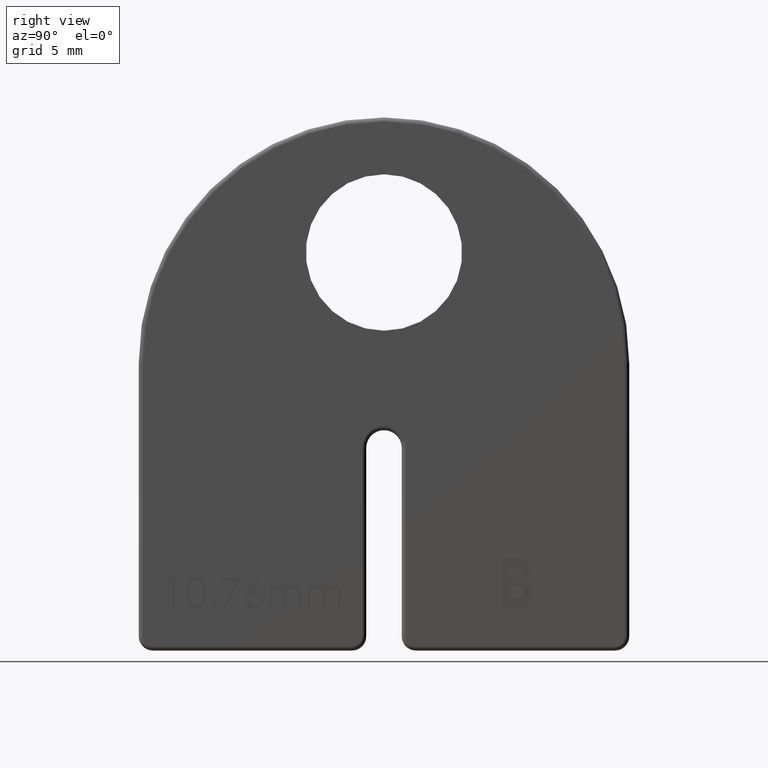
[diagram: clean part render]
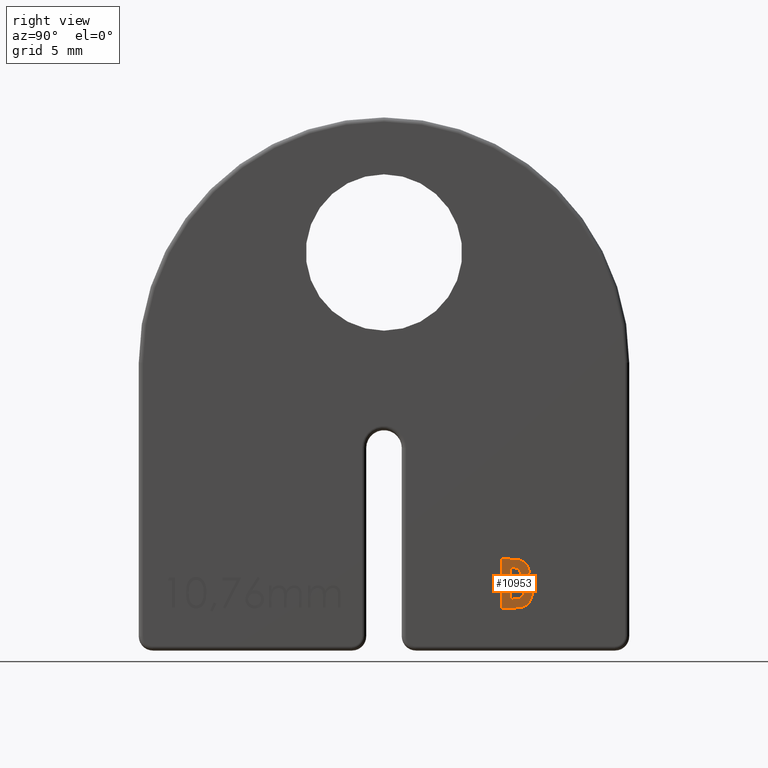
[diagram: same view with one face highlighted and labeled with its STEP entity id]
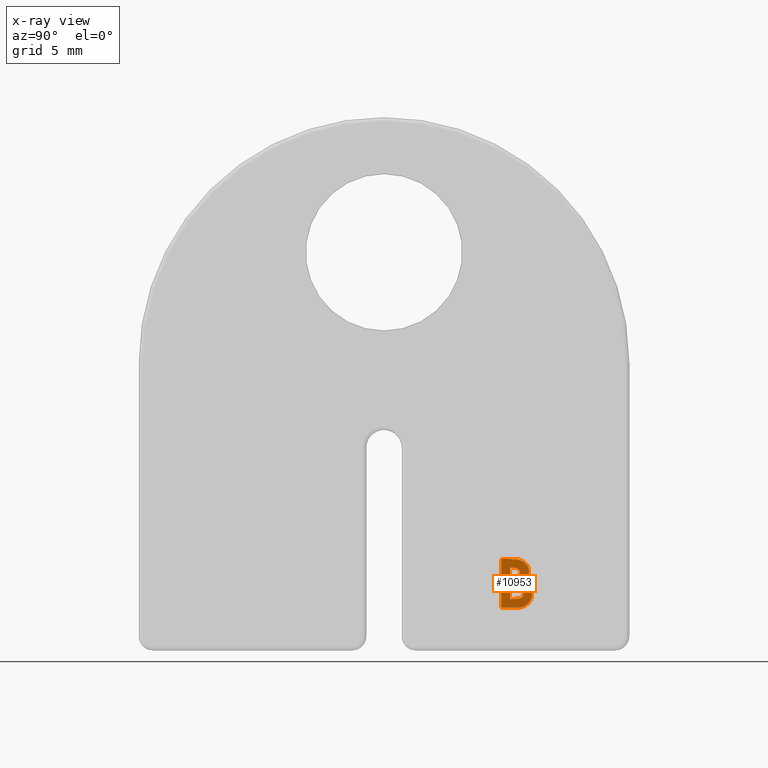
[diagram: x-ray of the same camera — body ghosted, the highlighted face saturated]
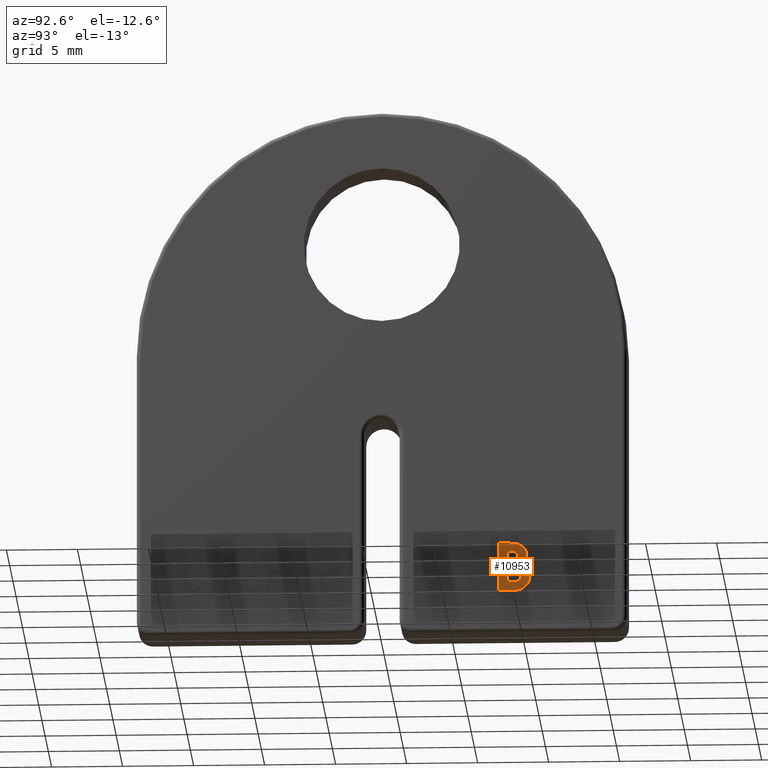
[diagram: same view with one face highlighted and labeled with its STEP entity id]
A machine part, right view. The second image highlights one B-rep face of the part: STEP entity #10953.
The next image is the same camera in x-ray: the body ghosted, the highlighted face saturated — about 0% of this face is hidden behind the body in this view.
A second angle (auxiliary view) of the same face is appended — the face is thin or edge-on in the first view.
In plain terms, the highlighted planar face has unit normal (1, -0, 0).
Its self-contained STEP definition (entity closure, byte-faithful):
#20 = CARTESIAN_POINT ( 'NONE',  ( 3.499999999999999600, 10.41013143520535600, 4.139619077888255600 ) ) ;
#100 = CARTESIAN_POINT ( 'NONE',  ( 3.500000000000001300, 10.36516602735841600, 4.338464676585641800 ) ) ;
#128 = CARTESIAN_POINT ( 'NONE',  ( 3.500000000000000000, 10.41857638888888700, 3.995632595486110700 ) ) ;
#275 = EDGE_CURVE ( 'NONE', #16411, #18564, #7447, .T. ) ;
#282 = FACE_BOUND ( 'NONE', #10686, .T. ) ;
#383 = VERTEX_POINT ( 'NONE', #10902 ) ;
#520 = CARTESIAN_POINT ( 'NONE',  ( 3.500000000000000000, 9.464412258733810600, 5.718203924093611300 ) ) ;
#550 = CARTESIAN_POINT ( 'NONE',  ( 3.499999999999999600, 10.09417881822505500, 5.955117638097018300 ) ) ;
#623 = CARTESIAN_POINT ( 'NONE',  ( 3.500000000000000400, 10.05614775797258400, 6.015293188067772700 ) ) ;
#674 = B_SPLINE_CURVE_WITH_KNOTS ( 'NONE', 3,
 ( #5881, #21975, #16765, #21904, #21751, #520, #2376, #6104, #4156, #13110, #7509, #11243, #19961, #11081, #5958 ),
 .UNSPECIFIED., .F., .F.,
 ( 4, 1, 1, 1, 1, 1, 1, 1, 1, 1, 1, 1, 4 ),
 ( 0.0000000000000000000, 0.1123397055304398700, 0.2172043059062445700, 0.3207987630358897800, 0.4294760880340239800, 0.4869234955140479500, 0.5473863498778736000, 0.6105942085202363800, 0.6783160237002511300, 0.7509883913460968500, 0.8285513832741331400, 0.9114876284239011900, 1.000000000000000000 ),
 .UNSPECIFIED. ) ;
#703 = CARTESIAN_POINT ( 'NONE',  ( 3.500000000000000000, 8.875173611111110400, 4.499305555555555000 ) ) ;
#1187 = CARTESIAN_POINT ( 'NONE',  ( 3.499999999999999600, 9.121025390901062100, 4.498302520519143100 ) ) ;
#1437 = CARTESIAN_POINT ( 'NONE',  ( 3.499999999999998700, 9.550805795732170400, 3.673377552892806100 ) ) ;
#1497 = VERTEX_POINT ( 'NONE', #19052 ) ;
#1513 = LINE ( 'NONE', #18235, #9853 ) ;
#1515 = CARTESIAN_POINT ( 'NONE',  ( 3.500000000000000900, 10.11533522020680000, 5.181741882418963400 ) ) ;
#1653 = VERTEX_POINT ( 'NONE', #19872 ) ;
#1656 = VERTEX_POINT ( 'NONE', #1748 ) ;
#1748 = CARTESIAN_POINT ( 'NONE',  ( 3.500000000000000000, 9.052940538194443200, 3.617361111111110400 ) ) ;
#1796 = CARTESIAN_POINT ( 'NONE',  ( 3.500000000000000000, 8.875173611111110400, 4.499305555555555000 ) ) ;
#1936 = CARTESIAN_POINT ( 'NONE',  ( 3.500000000000000000, 10.19809027777777600, 5.542480468750000000 ) ) ;
#2359 = ORIENTED_EDGE ( 'NONE', *, *, #2426, .F. ) ;
#2376 = CARTESIAN_POINT ( 'NONE',  ( 3.500000000000000900, 9.419991816386129800, 5.748186197470976000 ) ) ;
#2406 = CARTESIAN_POINT ( 'NONE',  ( 3.499999999999999600, 10.18736926470878100, 5.689496332121551700 ) ) ;
#2426 = EDGE_CURVE ( 'NONE', #18564, #21677, #20283, .T. ) ;
#2588 = CARTESIAN_POINT ( 'NONE',  ( 3.500000000000000000, 9.225195312499998600, 2.999999999999999100 ) ) ;
#2736 = CARTESIAN_POINT ( 'NONE',  ( 3.500000000000001300, 9.214554870892850900, 4.491721033580618400 ) ) ;
#2888 = CARTESIAN_POINT ( 'NONE',  ( 3.499999999999999100, 9.799693637943541100, 4.073313076660720200 ) ) ;
#2952 = CARTESIAN_POINT ( 'NONE',  ( 3.500000000000000400, 9.030010845959008500, 6.435813257527432700 ) ) ;
#3028 = CARTESIAN_POINT ( 'NONE',  ( 3.500000000000000400, 9.221688104552933800, 6.425444569301864900 ) ) ;
#3033 = CARTESIAN_POINT ( 'NONE',  ( 3.500000000000000400, 9.791457767523040100, 4.125035890322199500 ) ) ;
#3137 = CARTESIAN_POINT ( 'NONE',  ( 3.499999999999999600, 9.715472735383771800, 3.776777778774666600 ) ) ;
#3147 = ORIENTED_EDGE ( 'NONE', *, *, #9008, .F. ) ;
#3278 = CARTESIAN_POINT ( 'NONE',  ( 3.499999999999999600, 9.741989968563922600, 3.810313734915045100 ) ) ;
#3285 = CARTESIAN_POINT ( 'NONE',  ( 3.499999999999999600, 9.928650762454671200, 4.948337526577533100 ) ) ;
#3346 = LINE ( 'NONE', #703, #6727 ) ;
#3364 = CARTESIAN_POINT ( 'NONE',  ( 3.500000000000000000, 9.039160156249998600, 5.072569444444443600 ) ) ;
#3421 = CARTESIAN_POINT ( 'NONE',  ( 3.500000000000000900, 9.325172472447667000, 3.001242640618175800 ) ) ;
#3641 = CARTESIAN_POINT ( 'NONE',  ( 3.500000000000000000, 9.980470089661416500, 4.803077827043446200 ) ) ;
#3864 = CARTESIAN_POINT ( 'NONE',  ( 3.500000000000000400, 10.19763990146651100, 5.567544024947495500 ) ) ;
#3967 = CARTESIAN_POINT ( 'NONE',  ( 3.500000000000000000, 8.257812499999998200, 6.439583333333332300 ) ) ;
#4156 = CARTESIAN_POINT ( 'NONE',  ( 3.500000000000001300, 9.340326190016082100, 5.785798346924119400 ) ) ;
#4513 = CARTESIAN_POINT ( 'NONE',  ( 3.500000000000000000, 9.731725375443979000, 4.262263206921948800 ) ) ;
#4566 = CARTESIAN_POINT ( 'NONE',  ( 3.500000000000000000, 9.022623697916666100, 4.499305555555555000 ) ) ;
#4585 = CARTESIAN_POINT ( 'NONE',  ( 3.499999999999998200, 9.129918081730251000, 6.430919521694141500 ) ) ;
#4665 = CARTESIAN_POINT ( 'NONE',  ( 3.500000000000000000, 8.922284340784360200, 6.439596258710102100 ) ) ;
#4696 = ORIENTED_EDGE ( 'NONE', *, *, #9323, .F. ) ;
#4841 = VECTOR ( 'NONE', #6231, 1000.000000000000000 ) ;
#5007 = CARTESIAN_POINT ( 'NONE',  ( 3.500000000000000000, 9.800980077147221100, 4.003858157132411200 ) ) ;
#5017 = ORIENTED_EDGE ( 'NONE', *, *, #15896, .F. ) ;
#5100 = CARTESIAN_POINT ( 'NONE',  ( 3.500000000000000000, 9.580729166666664300, 5.459798177083332100 ) ) ;
#5148 = CARTESIAN_POINT ( 'NONE',  ( 3.500000000000000000, 9.841178385416665000, 4.879644097222221300 ) ) ;
#5156 = CARTESIAN_POINT ( 'NONE',  ( 3.499999999999999600, 10.27108017778980400, 3.469836674933378000 ) ) ;
#5260 = CARTESIAN_POINT ( 'NONE',  ( 3.500000000000000000, 9.458198187905962200, 5.183284392433188600 ) ) ;
#5283 = VECTOR ( 'NONE', #13936, 1000.000000000000000 ) ;
#5288 = DIRECTION ( 'NONE',  ( 1.142680129939896400E-013, 0.0000000000000000000, -1.000000000000000000 ) ) ;
#5442 = CARTESIAN_POINT ( 'NONE',  ( 3.500000000000000000, 9.510449218749997200, 6.378260633680555200 ) ) ;
#5531 = CARTESIAN_POINT ( 'NONE',  ( 3.499999999999999600, 9.865430431176205800, 4.867265616231069500 ) ) ;
#5765 = CARTESIAN_POINT ( 'NONE',  ( 3.500000000000001800, 9.911533281184624400, 6.175621636266492400 ) ) ;
#5862 = AXIS2_PLACEMENT_3D ( 'NONE', #7080, #19311, #5288 ) ;
#5881 = CARTESIAN_POINT ( 'NONE',  ( 3.500000000000000000, 9.580729166666664300, 5.459798177083332100 ) ) ;
#5958 = CARTESIAN_POINT ( 'NONE',  ( 3.500000000000000400, 9.068787977430554600, 5.822222222222222900 ) ) ;
#6104 = CARTESIAN_POINT ( 'NONE',  ( 3.499999999999999100, 9.381927578111357100, 5.767828944972853500 ) ) ;
#6231 = DIRECTION ( 'NONE',  ( 0.0000000000000000000, -1.000000000000000000, 0.0000000000000000000 ) ) ;
#6237 = CARTESIAN_POINT ( 'NONE',  ( 3.500000000000000000, 8.847616293818868300, 6.439587737238020400 ) ) ;
#6400 = CARTESIAN_POINT ( 'NONE',  ( 3.500000000000000000, 9.801215277777776800, 4.019748263888888400 ) ) ;
#6495 = VERTEX_POINT ( 'NONE', #1796 ) ;
#6600 = DIRECTION ( 'NONE',  ( 0.0000000000000000000, 1.000000000000000000, 0.0000000000000000000 ) ) ;
#6659 = CARTESIAN_POINT ( 'NONE',  ( 3.500000000000001300, 9.603066289854384200, 3.694518172741365600 ) ) ;
#6707 = VECTOR ( 'NONE', #13016, 1000.000000000000000 ) ;
#6727 = VECTOR ( 'NONE', #11512, 1000.000000000000000 ) ;
#6733 = CARTESIAN_POINT ( 'NONE',  ( 3.500000000000000000, 9.801215277777776800, 4.019748263888888400 ) ) ;
#6776 = ORIENTED_EDGE ( 'NONE', *, *, #20920, .F. ) ;
#6798 = CARTESIAN_POINT ( 'NONE',  ( 3.499999999999999100, 10.09905023388387900, 3.262217727253700500 ) ) ;
#6807 = CARTESIAN_POINT ( 'NONE',  ( 3.500000000000000000, 9.419591731161800000, 3.641134855029174200 ) ) ;
#6820 = CARTESIAN_POINT ( 'NONE',  ( 3.500000000000000000, 9.411577216574150000, 5.151343390410922000 ) ) ;
#6939 = LINE ( 'NONE', #13836, #17792 ) ;
#6949 = CARTESIAN_POINT ( 'NONE',  ( 3.500000000000000900, 9.749463117588863500, 3.065074008058788800 ) ) ;
#7001 = PLANE ( 'NONE',  #5862 ) ;
#7026 = CARTESIAN_POINT ( 'NONE',  ( 3.499999999999999600, 10.33653669206526600, 3.590910058146776300 ) ) ;
#7080 = CARTESIAN_POINT ( 'NONE',  ( 3.499999999999999100, 9.161736930774029700, 6.428943448994998800 ) ) ;
#7088 = CARTESIAN_POINT ( 'NONE',  ( 3.499999999999999100, 10.28017865256191500, 4.515047744218474400 ) ) ;
#7106 = CARTESIAN_POINT ( 'NONE',  ( 3.499999999999998200, 9.676012684989117900, 3.044182347592038900 ) ) ;
#7447 = B_SPLINE_CURVE_WITH_KNOTS ( 'NONE', 3,
 ( #8506, #8580, #17547, #10436, #12108, #1515, #21121, #10593, #3285, #17475, #8654 ),
 .UNSPECIFIED., .F., .F.,
 ( 4, 1, 1, 1, 1, 1, 1, 1, 4 ),
 ( 0.0000000000000000000, 0.1232760814693418800, 0.2426538198131745800, 0.3594463973827505300, 0.4747706651205702600, 0.5938761915345822700, 0.7201867960350851700, 0.8544576162001076300, 1.000000000000000000 ),
 .UNSPECIFIED. ) ;
#7455 = CARTESIAN_POINT ( 'NONE',  ( 3.499999999999999600, 10.19675265793414300, 5.616919353041034000 ) ) ;
#7509 = CARTESIAN_POINT ( 'NONE',  ( 3.500000000000000900, 9.243513936970764200, 5.809514784790996700 ) ) ;
#7538 = CARTESIAN_POINT ( 'NONE',  ( 3.500000000000000400, 9.793923499689889000, 6.261559277412015200 ) ) ;
#7572 = CARTESIAN_POINT ( 'NONE',  ( 3.500000000000000400, 9.068787977430554600, 5.822222222222222900 ) ) ;
#7861 = EDGE_CURVE ( 'NONE', #16280, #8145, #18725, .T. ) ;
#8145 = VERTEX_POINT ( 'NONE', #4566 ) ;
#8247 = CARTESIAN_POINT ( 'NONE',  ( 3.500000000000000900, 9.381157693304516000, 6.406067266530763000 ) ) ;
#8399 = CARTESIAN_POINT ( 'NONE',  ( 3.500000000000000000, 9.801215277777776800, 4.019748263888888400 ) ) ;
#8493 = CARTESIAN_POINT ( 'NONE',  ( 3.500000000000000900, 10.41282034951643700, 3.855941143140015900 ) ) ;
#8506 = CARTESIAN_POINT ( 'NONE',  ( 3.500000000000000000, 10.19809027777777600, 5.542480468750000000 ) ) ;
#8519 = ORIENTED_EDGE ( 'NONE', *, *, #9397, .F. ) ;
#8534 = EDGE_CURVE ( 'NONE', #8722, #11790, #674, .T. ) ;
#8563 = CARTESIAN_POINT ( 'NONE',  ( 3.500000000000001300, 9.259194786378197200, 3.000422587791649500 ) ) ;
#8580 = CARTESIAN_POINT ( 'NONE',  ( 3.500000000000000400, 10.19691634691960800, 5.510278740654230000 ) ) ;
#8641 = CARTESIAN_POINT ( 'NONE',  ( 3.500000000000000000, 9.511608673900765300, 3.015687474959500000 ) ) ;
#8651 = CARTESIAN_POINT ( 'NONE',  ( 3.500000000000000400, 9.763315727970216100, 3.846631211720105800 ) ) ;
#8654 = CARTESIAN_POINT ( 'NONE',  ( 3.500000000000000000, 9.841178385416665000, 4.879644097222221300 ) ) ;
#8670 = CARTESIAN_POINT ( 'NONE',  ( 3.500000000000000000, 8.875173611111110400, 5.822222222222222000 ) ) ;
#8721 = CARTESIAN_POINT ( 'NONE',  ( 3.500000000000000000, 10.38482028542279400, 3.719838039762577000 ) ) ;
#8722 = VERTEX_POINT ( 'NONE', #17384 ) ;
#8860 = CARTESIAN_POINT ( 'NONE',  ( 3.499999999999999600, 10.20016290851002300, 4.620375495080420300 ) ) ;
#8901 = CARTESIAN_POINT ( 'NONE',  ( 3.500000000000001300, 9.224399193322907900, 5.086215433654118100 ) ) ;
#9008 = EDGE_CURVE ( 'NONE', #12726, #1653, #14051, .T. ) ;
#9167 = FACE_OUTER_BOUND ( 'NONE', #16835, .T. ) ;
#9323 = EDGE_CURVE ( 'NONE', #6495, #1497, #3346, .T. ) ;
#9397 = EDGE_CURVE ( 'NONE', #22265, #12726, #20918, .T. ) ;
#9465 = CARTESIAN_POINT ( 'NONE',  ( 3.500000000000000000, 9.964515847346374900, 6.126263763399548700 ) ) ;
#9541 = CARTESIAN_POINT ( 'NONE',  ( 3.500000000000000900, 9.587072293064817800, 6.357115747728631300 ) ) ;
#9559 = LINE ( 'NONE', #14935, #4841 ) ;
#9576 = CARTESIAN_POINT ( 'NONE',  ( 3.500000000000000000, 8.875173611111110400, 5.822222222222222000 ) ) ;
#9727 = FACE_BOUND ( 'NONE', #22725, .T. ) ;
#9794 = CARTESIAN_POINT ( 'NONE',  ( 3.499999999999998700, 9.305477113361961400, 6.416010132440737500 ) ) ;
#9853 = VECTOR ( 'NONE', #13301, 1000.000000000000000 ) ;
#9874 = EDGE_CURVE ( 'NONE', #8145, #6495, #20903, .T. ) ;
#9875 = CARTESIAN_POINT ( 'NONE',  ( 3.500000000000000000, 9.510449218749997200, 6.378260633680555200 ) ) ;
#9882 = CARTESIAN_POINT ( 'NONE',  ( 3.499999999999998700, 9.571270200802130600, 4.403265789116539400 ) ) ;
#9999 = LINE ( 'NONE', #17619, #5283 ) ;
#10021 = CARTESIAN_POINT ( 'NONE',  ( 3.500000000000000900, 9.757500134502477000, 4.219536907028486700 ) ) ;
#10054 = CARTESIAN_POINT ( 'NONE',  ( 3.500000000000000000, 9.052940538194443200, 3.617361111111110400 ) ) ;
#10087 = LINE ( 'NONE', #18932, #11503 ) ;
#10217 = VECTOR ( 'NONE', #21135, 1000.000000000000000 ) ;
#10431 = CARTESIAN_POINT ( 'NONE',  ( 3.499999999999999600, 9.792204232914382800, 3.927892090046585200 ) ) ;
#10436 = CARTESIAN_POINT ( 'NONE',  ( 3.499999999999999600, 10.17975928181589200, 5.353818239702953000 ) ) ;
#10522 = CARTESIAN_POINT ( 'NONE',  ( 3.500000000000001800, 9.104471578394361900, 5.073138984759194300 ) ) ;
#10550 = VERTEX_POINT ( 'NONE', #14011 ) ;
#10593 = CARTESIAN_POINT ( 'NONE',  ( 3.500000000000000400, 10.00360677065037900, 5.023760021491985300 ) ) ;
#10600 = CARTESIAN_POINT ( 'NONE',  ( 3.499999999999999600, 9.579259646769255500, 5.431358004852568500 ) ) ;
#10643 = CARTESIAN_POINT ( 'NONE',  ( 3.500000000000000900, 10.38500042044322500, 4.274670613775205300 ) ) ;
#10686 = EDGE_LOOP ( 'NONE', ( #14575, #15142, #11796, #22883, #11478 ) ) ;
#10793 = CARTESIAN_POINT ( 'NONE',  ( 3.500000000000000000, 10.40030500809711900, 4.208337551290706600 ) ) ;
#10902 = CARTESIAN_POINT ( 'NONE',  ( 3.500000000000154100, 8.875173611111110400, 5.072569444444443600 ) ) ;
#10953 = ADVANCED_FACE ( 'NONE', ( #9727, #282, #9167 ), #7001, .T. ) ;
#11081 = CARTESIAN_POINT ( 'NONE',  ( 3.500000000000000400, 9.089701745121869800, 5.822050842505210400 ) ) ;
#11243 = CARTESIAN_POINT ( 'NONE',  ( 3.500000000000000900, 9.188827339148980800, 5.816529039366594500 ) ) ;
#11325 = B_SPLINE_CURVE_WITH_KNOTS ( 'NONE', 3,
 ( #5442, #19676, #9541, #14767, #22002, #7538, #19989, #5765, #9465, #18135, #623, #550, #21698, #12911, #16495, #2406, #7455, #3864, #12985 ),
 .UNSPECIFIED., .F., .F.,
 ( 4, 1, 1, 1, 1, 1, 1, 1, 1, 1, 1, 1, 1, 1, 1, 1, 4 ),
 ( 0.0000000000000000000, 0.06873910758119704300, 0.1348881962871900900, 0.1996901059670635500, 0.2629329040769851100, 0.3253065810831085000, 0.3869086644374875600, 0.4489703875443653000, 0.5106708521490515000, 0.5720164058643042400, 0.6326115965480172400, 0.6929086258923002900, 0.7525990589175344200, 0.8127666181699008100, 0.8734989280725474800, 0.9357864170686498500, 1.000000000000000000 ),
 .UNSPECIFIED. ) ;
#11478 = ORIENTED_EDGE ( 'NONE', *, *, #14537, .F. ) ;
#11503 = VECTOR ( 'NONE', #11852, 1000.000000000000000 ) ;
#11512 = DIRECTION ( 'NONE',  ( 0.0000000000000000000, 0.0000000000000000000, -1.000000000000000000 ) ) ;
#11560 = VERTEX_POINT ( 'NONE', #16137 ) ;
#11634 = B_SPLINE_CURVE_WITH_KNOTS ( 'NONE', 3,
 ( #10054, #22206, #22723, #13945, #12169, #6807, #17318, #1437, #6659, #15517, #17246, #3137, #3278, #8651, #15747, #10431, #22868, #5007, #6733 ),
 .UNSPECIFIED., .F., .F.,
 ( 4, 1, 1, 1, 1, 1, 1, 1, 1, 1, 1, 1, 1, 1, 1, 1, 4 ),
 ( 0.0000000000000000000, 0.1096048279269799700, 0.2107289586479181300, 0.3021055522796413100, 0.3852746914428715800, 0.4593184430577149100, 0.5248481062749205100, 0.5836422981936779700, 0.6346413730195100700, 0.6812015378015107100, 0.7267984958730584500, 0.7706516608835900500, 0.8140165401416158400, 0.8579456920328781800, 0.9033057225776058900, 0.9505279004805480300, 1.000000000000000000 ),
 .UNSPECIFIED. ) ;
#11683 = CARTESIAN_POINT ( 'NONE',  ( 3.500000000000000000, 9.490750728893161200, 6.383320947936004700 ) ) ;
#11690 = CARTESIAN_POINT ( 'NONE',  ( 3.500000000000000000, 9.300981646984976000, 4.482883534129780600 ) ) ;
#11790 = VERTEX_POINT ( 'NONE', #7572 ) ;
#11796 = ORIENTED_EDGE ( 'NONE', *, *, #21979, .F. ) ;
#11852 = DIRECTION ( 'NONE',  ( 0.0000000000000000000, -1.000000000000000000, 0.0000000000000000000 ) ) ;
#12108 = CARTESIAN_POINT ( 'NONE',  ( 3.500000000000000400, 10.15223528463472900, 5.265949773784171800 ) ) ;
#12157 = CARTESIAN_POINT ( 'NONE',  ( 3.500000000000000000, 9.900183476479655900, 3.125122164036159900 ) ) ;
#12169 = CARTESIAN_POINT ( 'NONE',  ( 3.499999999999998700, 9.340431122215871800, 3.631137646316589000 ) ) ;
#12234 = CARTESIAN_POINT ( 'NONE',  ( 3.500000000000000000, 10.41857638888888700, 3.995632595486110700 ) ) ;
#12394 = CARTESIAN_POINT ( 'NONE',  ( 3.500000000000000900, 9.995464737160592300, 3.180408544004623900 ) ) ;
#12448 = CARTESIAN_POINT ( 'NONE',  ( 3.500000000000000400, 10.41769237014554300, 4.068604922212212900 ) ) ;
#12523 = CARTESIAN_POINT ( 'NONE',  ( 3.500000000000000900, 10.41827841472522700, 4.020229209743714400 ) ) ;
#12726 = VERTEX_POINT ( 'NONE', #20277 ) ;
#12758 = CARTESIAN_POINT ( 'NONE',  ( 3.500000000000000000, 9.841178385416665000, 4.879644097222221300 ) ) ;
#12911 = CARTESIAN_POINT ( 'NONE',  ( 3.499999999999999100, 10.15311428962589500, 5.827259780709050900 ) ) ;
#12985 = CARTESIAN_POINT ( 'NONE',  ( 3.500000000000000000, 10.19809027777777600, 5.542480468750000000 ) ) ;
#13016 = DIRECTION ( 'NONE',  ( 0.0000000000000000000, -1.000000000000000000, 0.0000000000000000000 ) ) ;
#13110 = CARTESIAN_POINT ( 'NONE',  ( 3.500000000000000000, 9.293690031678808700, 5.797918991810695900 ) ) ;
#13301 = DIRECTION ( 'NONE',  ( 0.0000000000000000000, 1.000000000000000000, 0.0000000000000000000 ) ) ;
#13309 = ORIENTED_EDGE ( 'NONE', *, *, #275, .F. ) ;
#13396 = CARTESIAN_POINT ( 'NONE',  ( 3.500000000000000000, 9.662758341894649700, 4.338330198524874800 ) ) ;
#13466 = B_SPLINE_CURVE_WITH_KNOTS ( 'NONE', 3,
 ( #3364, #13959, #10522, #15829, #8901, #19564, #21361, #22958, #6820, #5260, #17720, #19491, #21286, #10600, #5100 ),
 .UNSPECIFIED., .F., .F.,
 ( 4, 1, 1, 1, 1, 1, 1, 1, 1, 1, 1, 1, 4 ),
 ( 0.0000000000000000000, 0.08877622896545441000, 0.1713771372145573300, 0.2481138113668484300, 0.3211611878976189900, 0.3880331325497773900, 0.4520913744364372700, 0.5122677074822266100, 0.5688662368266964600, 0.6769360002929836200, 0.7810117272007112100, 0.8869176462132643000, 1.000000000000000000 ),
 .UNSPECIFIED. ) ;
#13549 = CARTESIAN_POINT ( 'NONE',  ( 3.500000000000000900, 9.450947853478803400, 4.450676240734352100 ) ) ;
#13836 = CARTESIAN_POINT ( 'NONE',  ( 3.500000000000000000, 8.257812499999998200, 2.999999999999999100 ) ) ;
#13852 = LINE ( 'NONE', #8670, #10217 ) ;
#13862 = ORIENTED_EDGE ( 'NONE', *, *, #22412, .F. ) ;
#13936 = DIRECTION ( 'NONE',  ( 0.0000000000000000000, 1.000000000000000000, 0.0000000000000000000 ) ) ;
#13945 = CARTESIAN_POINT ( 'NONE',  ( 3.500000000000002200, 9.252458420009581600, 3.622575080877358900 ) ) ;
#13959 = CARTESIAN_POINT ( 'NONE',  ( 3.500000000000000900, 9.061447401083629700, 5.072763797652821300 ) ) ;
#14011 = CARTESIAN_POINT ( 'NONE',  ( 3.500000000000000000, 9.039160156249998600, 5.072569444444443600 ) ) ;
#14051 = B_SPLINE_CURVE_WITH_KNOTS ( 'NONE', 3,
 ( #16900, #6237, #4665, #2952, #4585, #3028, #9794, #8247, #15319, #11683, #9875 ),
 .UNSPECIFIED., .F., .F.,
 ( 4, 1, 1, 1, 1, 1, 1, 1, 4 ),
 ( 0.0000000000000000000, 0.1639957318060722700, 0.3173286319587174100, 0.4580598946275434300, 0.5891583945859041300, 0.7079520097453085900, 0.8163219998754478500, 0.9135847296003157800, 0.9999999999999998900 ),
 .UNSPECIFIED. ) ;
#14534 = CARTESIAN_POINT ( 'NONE',  ( 3.500000000000000400, 10.04303610050891000, 4.760708210686675400 ) ) ;
#14537 = EDGE_CURVE ( 'NONE', #11790, #16049, #9559, .T. ) ;
#14575 = ORIENTED_EDGE ( 'NONE', *, *, #8534, .F. ) ;
#14767 = CARTESIAN_POINT ( 'NONE',  ( 3.499999999999999100, 9.659776614587873000, 6.328833248470061800 ) ) ;
#14935 = CARTESIAN_POINT ( 'NONE',  ( 3.500000000000000000, 9.068787977430552900, 5.822222222222222000 ) ) ;
#15142 = ORIENTED_EDGE ( 'NONE', *, *, #19396, .F. ) ;
#15179 = CARTESIAN_POINT ( 'NONE',  ( 3.500000000000000000, 9.056169570011036300, 4.498963613420037300 ) ) ;
#15199 = EDGE_CURVE ( 'NONE', #1497, #1656, #1513, .T. ) ;
#15319 = CARTESIAN_POINT ( 'NONE',  ( 3.499999999999999100, 9.448881054637182000, 6.394076783081156500 ) ) ;
#15517 = CARTESIAN_POINT ( 'NONE',  ( 3.500000000000000000, 9.646965645766869100, 3.719033719351061000 ) ) ;
#15736 = CARTESIAN_POINT ( 'NONE',  ( 3.500000000000000000, 9.225195312499998600, 2.999999999999999100 ) ) ;
#15747 = CARTESIAN_POINT ( 'NONE',  ( 3.500000000000000400, 9.781230212812559400, 3.885395092945155900 ) ) ;
#15829 = CARTESIAN_POINT ( 'NONE',  ( 3.499999999999997300, 9.166615438914581300, 5.077971264409023400 ) ) ;
#15896 = EDGE_CURVE ( 'NONE', #1656, #16280, #11634, .T. ) ;
#16049 = VERTEX_POINT ( 'NONE', #9576 ) ;
#16096 = CARTESIAN_POINT ( 'NONE',  ( 3.500000000000000000, 10.41857638888888700, 3.995632595486110700 ) ) ;
#16137 = CARTESIAN_POINT ( 'NONE',  ( 3.500000000000000000, 8.257812499999998200, 2.999999999999999100 ) ) ;
#16280 = VERTEX_POINT ( 'NONE', #8399 ) ;
#16334 = CARTESIAN_POINT ( 'NONE',  ( 3.499999999999999100, 10.10047005914564300, 4.716441094278493100 ) ) ;
#16411 = VERTEX_POINT ( 'NONE', #1936 ) ;
#16495 = CARTESIAN_POINT ( 'NONE',  ( 3.500000000000001300, 10.17287745169426200, 5.759525585894111900 ) ) ;
#16765 = CARTESIAN_POINT ( 'NONE',  ( 3.500000000000000400, 9.577279809795145500, 5.537942653461991300 ) ) ;
#16835 = EDGE_LOOP ( 'NONE', ( #22588, #19501, #2359, #13309, #6776, #3147, #8519, #13862 ) ) ;
#16900 = CARTESIAN_POINT ( 'NONE',  ( 3.500000000000000000, 8.809027777777776800, 6.439583333333332300 ) ) ;
#17210 = CARTESIAN_POINT ( 'NONE',  ( 3.500000000000000400, 9.620416072488623600, 4.372818916714176200 ) ) ;
#17246 = CARTESIAN_POINT ( 'NONE',  ( 3.499999999999999600, 9.683680341618156700, 3.746765194732988300 ) ) ;
#17288 = CARTESIAN_POINT ( 'NONE',  ( 3.500000000000000400, 9.776552871625764100, 4.173353834695777000 ) ) ;
#17318 = CARTESIAN_POINT ( 'NONE',  ( 3.500000000000000400, 9.489292299678174600, 3.656942094145004200 ) ) ;
#17384 = CARTESIAN_POINT ( 'NONE',  ( 3.500000000000000000, 9.580729166666664300, 5.459798177083332100 ) ) ;
#17462 = CARTESIAN_POINT ( 'NONE',  ( 3.500000000000000400, 9.421256322982253900, 3.006827796740452600 ) ) ;
#17475 = CARTESIAN_POINT ( 'NONE',  ( 3.499999999999999100, 9.871108492454057500, 4.903148679617150800 ) ) ;
#17522 = EDGE_CURVE ( 'NONE', #16049, #383, #13852, .T. ) ;
#17547 = CARTESIAN_POINT ( 'NONE',  ( 3.500000000000001300, 10.19460560826263400, 5.446893595426629100 ) ) ;
#17619 = CARTESIAN_POINT ( 'NONE',  ( 3.500000000000000000, 8.875173611111110400, 5.072569444444443600 ) ) ;
#17720 = CARTESIAN_POINT ( 'NONE',  ( 3.499999999999999600, 9.507479916602003200, 5.230287006935300900 ) ) ;
#17750 = CARTESIAN_POINT ( 'NONE',  ( 3.500000000000001800, 10.24279301052171600, 4.568971965190690400 ) ) ;
#17792 = VECTOR ( 'NONE', #20777, 1000.000000000000000 ) ;
#17825 = CARTESIAN_POINT ( 'NONE',  ( 3.499999999999999600, 9.912981983185991600, 4.842994839716423500 ) ) ;
#18135 = CARTESIAN_POINT ( 'NONE',  ( 3.500000000000000400, 10.01269458682962100, 6.072352997807526800 ) ) ;
#18235 = CARTESIAN_POINT ( 'NONE',  ( 3.500000000000000000, 8.875173611111110400, 3.617361111111110400 ) ) ;
#18292 = EDGE_CURVE ( 'NONE', #20546, #11560, #10087, .T. ) ;
#18333 = CARTESIAN_POINT ( 'NONE',  ( 3.500000000000000000, 9.022623697916666100, 4.499305555555555000 ) ) ;
#18564 = VERTEX_POINT ( 'NONE', #5148 ) ;
#18725 = B_SPLINE_CURVE_WITH_KNOTS ( 'NONE', 3,
 ( #6400, #20855, #2888, #3033, #17288, #10021, #4513, #22479, #13396, #17210, #9882, #20622, #13549, #18855, #11690, #2736, #1187, #15179, #20780 ),
 .UNSPECIFIED., .F., .F.,
 ( 4, 1, 1, 1, 1, 1, 1, 1, 1, 1, 1, 1, 1, 1, 1, 1, 4 ),
 ( 0.0000000000000000000, 0.05281094546556867200, 0.1028615149074858500, 0.1516539119242014700, 0.1995193926127832600, 0.2477235757368690700, 0.2962089696021788500, 0.3467249296006356700, 0.3989630482891690600, 0.4547297843496034800, 0.5141832887861188500, 0.5792154523995519700, 0.6501391953107744600, 0.7275304742583315100, 0.8115069859428367700, 0.9025043172151754300, 1.000000000000000000 ),
 .UNSPECIFIED. ) ;
#18855 = CARTESIAN_POINT ( 'NONE',  ( 3.499999999999999600, 9.379564337288302400, 4.468041669667671000 ) ) ;
#18932 = CARTESIAN_POINT ( 'NONE',  ( 3.500000000000000000, 9.225195312499998600, 2.999999999999999100 ) ) ;
#19052 = CARTESIAN_POINT ( 'NONE',  ( 3.500000000000320600, 8.875173611111110400, 3.617361111111110400 ) ) ;
#19311 = DIRECTION ( 'NONE',  ( 1.000000000000000000, -1.304080824391994100E-017, 1.142680129939896400E-013 ) ) ;
#19396 = EDGE_CURVE ( 'NONE', #10550, #8722, #13466, .T. ) ;
#19468 = CARTESIAN_POINT ( 'NONE',  ( 3.500000000000000400, 10.41664060710456300, 3.948653735304628000 ) ) ;
#19491 = CARTESIAN_POINT ( 'NONE',  ( 3.500000000000000900, 9.550862068119958100, 5.298192022117691900 ) ) ;
#19501 = ORIENTED_EDGE ( 'NONE', *, *, #22006, .F. ) ;
#19524 = CARTESIAN_POINT ( 'NONE',  ( 3.500000000000000400, 10.34075770652663600, 4.399638992046124700 ) ) ;
#19564 = CARTESIAN_POINT ( 'NONE',  ( 3.499999999999999100, 9.277603680308368800, 5.097718123595218000 ) ) ;
#19603 = CARTESIAN_POINT ( 'NONE',  ( 3.500000000000000400, 10.31240512751667600, 4.458326257973196100 ) ) ;
#19676 = CARTESIAN_POINT ( 'NONE',  ( 3.500000000000000000, 9.536315110251132800, 6.371122688215338700 ) ) ;
#19872 = CARTESIAN_POINT ( 'NONE',  ( 3.500000000000000000, 9.510449218749997200, 6.378260633680555200 ) ) ;
#19961 = CARTESIAN_POINT ( 'NONE',  ( 3.499999999999999600, 9.130211749286864600, 5.821718879697146000 ) ) ;
#19989 = CARTESIAN_POINT ( 'NONE',  ( 3.500000000000000000, 9.854579815566905800, 6.220714666819304700 ) ) ;
#20185 = B_SPLINE_CURVE_WITH_KNOTS ( 'NONE', 3,
 ( #12234, #19468, #8493, #8721, #7026, #5156, #21181, #6798, #12394, #12157, #21260, #6949, #7106, #20952, #8641, #17462, #3421, #8563, #15736 ),
 .UNSPECIFIED., .F., .F.,
 ( 4, 1, 1, 1, 1, 1, 1, 1, 1, 1, 1, 1, 1, 1, 1, 1, 4 ),
 ( 0.0000000000000000000, 0.08026220286426952200, 0.1583971354699118800, 0.2362673906132073400, 0.3147721575402184200, 0.3928922997997763600, 0.4686891175609043700, 0.5427421592397271300, 0.6176721617907711100, 0.6563307928722673700, 0.6970469460870881700, 0.7406660259120941800, 0.7867782300994629100, 0.8355722957944905500, 0.8872448447794606400, 0.9418952651580414500, 0.9999999999999998900 ),
 .UNSPECIFIED. ) ;
#20277 = CARTESIAN_POINT ( 'NONE',  ( 3.500000000000000000, 8.809027777777776800, 6.439583333333332300 ) ) ;
#20283 = B_SPLINE_CURVE_WITH_KNOTS ( 'NONE', 3,
 ( #12758, #5531, #17825, #3641, #14534, #16334, #21324, #8860, #17750, #7088, #19603, #19524, #100, #10643, #10793, #20, #12448, #12523, #16096 ),
 .UNSPECIFIED., .F., .F.,
 ( 4, 1, 1, 1, 1, 1, 1, 1, 1, 1, 1, 1, 1, 1, 1, 1, 4 ),
 ( 0.0000000000000000000, 0.07278369802044423700, 0.1427086950189223900, 0.2094697305103997200, 0.2746880726975530200, 0.3364409830292631700, 0.3976757894428439300, 0.4565627377802958200, 0.5148155921100581200, 0.5728512113169659200, 0.6307990577965074700, 0.6889515012265091700, 0.7487691118872928900, 0.8092449398081107400, 0.8707286130217920500, 0.9342720080429007800, 1.000000000000000000 ),
 .UNSPECIFIED. ) ;
#20546 = VERTEX_POINT ( 'NONE', #2588 ) ;
#20622 = CARTESIAN_POINT ( 'NONE',  ( 3.500000000000000900, 9.514494296373030100, 4.428488297109474600 ) ) ;
#20777 = DIRECTION ( 'NONE',  ( 0.0000000000000000000, 0.0000000000000000000, 1.000000000000000000 ) ) ;
#20780 = CARTESIAN_POINT ( 'NONE',  ( 3.500000000000000000, 9.022623697916666100, 4.499305555555555000 ) ) ;
#20855 = CARTESIAN_POINT ( 'NONE',  ( 3.500000000000000000, 9.800699070620060700, 4.037919804310282000 ) ) ;
#20872 = ORIENTED_EDGE ( 'NONE', *, *, #9874, .F. ) ;
#20903 = LINE ( 'NONE', #18333, #6707 ) ;
#20918 = LINE ( 'NONE', #22530, #22035 ) ;
#20920 = EDGE_CURVE ( 'NONE', #1653, #16411, #11325, .T. ) ;
#20952 = CARTESIAN_POINT ( 'NONE',  ( 3.500000000000001800, 9.596546283109328000, 3.027835159282548100 ) ) ;
#21121 = CARTESIAN_POINT ( 'NONE',  ( 3.500000000000000000, 10.06660929841292400, 5.100676273913329300 ) ) ;
#21135 = DIRECTION ( 'NONE',  ( 0.0000000000000000000, 0.0000000000000000000, -1.000000000000000000 ) ) ;
#21181 = CARTESIAN_POINT ( 'NONE',  ( 3.500000000000000400, 10.19082970714235800, 3.359585666250226600 ) ) ;
#21260 = CARTESIAN_POINT ( 'NONE',  ( 3.499999999999999600, 9.817731173312969500, 3.088080700821776300 ) ) ;
#21286 = CARTESIAN_POINT ( 'NONE',  ( 3.499999999999999100, 9.576413865677849900, 5.376282531214349600 ) ) ;
#21324 = CARTESIAN_POINT ( 'NONE',  ( 3.500000000000000900, 10.15312603194685300, 4.669612243625961900 ) ) ;
#21361 = CARTESIAN_POINT ( 'NONE',  ( 3.500000000000000400, 9.326724518990865000, 5.112324862708085500 ) ) ;
#21677 = VERTEX_POINT ( 'NONE', #128 ) ;
#21698 = CARTESIAN_POINT ( 'NONE',  ( 3.500000000000001800, 10.12662240881481200, 5.892484314606576800 ) ) ;
#21751 = CARTESIAN_POINT ( 'NONE',  ( 3.500000000000000400, 9.511593436516692500, 5.674351885097463500 ) ) ;
#21904 = CARTESIAN_POINT ( 'NONE',  ( 3.499999999999999100, 9.551552180954709900, 5.610259806368407700 ) ) ;
#21975 = CARTESIAN_POINT ( 'NONE',  ( 3.500000000000000400, 9.579553300251959100, 5.486437190873743000 ) ) ;
#21979 = EDGE_CURVE ( 'NONE', #383, #10550, #9999, .T. ) ;
#22002 = CARTESIAN_POINT ( 'NONE',  ( 3.500000000000000000, 9.728732022224992400, 6.297376114608650400 ) ) ;
#22006 = EDGE_CURVE ( 'NONE', #21677, #20546, #20185, .T. ) ;
#22035 = VECTOR ( 'NONE', #6600, 1000.000000000000000 ) ;
#22120 = ORIENTED_EDGE ( 'NONE', *, *, #7861, .F. ) ;
#22206 = CARTESIAN_POINT ( 'NONE',  ( 3.500000000000000000, 9.088084421786060600, 3.617565507192086500 ) ) ;
#22208 = ORIENTED_EDGE ( 'NONE', *, *, #15199, .F. ) ;
#22265 = VERTEX_POINT ( 'NONE', #3967 ) ;
#22412 = EDGE_CURVE ( 'NONE', #11560, #22265, #6939, .T. ) ;
#22479 = CARTESIAN_POINT ( 'NONE',  ( 3.499999999999999600, 9.700331547227850800, 4.302182680274377400 ) ) ;
#22530 = CARTESIAN_POINT ( 'NONE',  ( 3.500000000000000000, 8.257812499999998200, 6.439583333333332300 ) ) ;
#22588 = ORIENTED_EDGE ( 'NONE', *, *, #18292, .F. ) ;
#22723 = CARTESIAN_POINT ( 'NONE',  ( 3.499999999999999600, 9.155652923394756100, 3.617958484163177300 ) ) ;
#22725 = EDGE_LOOP ( 'NONE', ( #22120, #5017, #22208, #4696, #20872 ) ) ;
#22868 = CARTESIAN_POINT ( 'NONE',  ( 3.499999999999999100, 9.800520372480511000, 3.972800603361559700 ) ) ;
#22883 = ORIENTED_EDGE ( 'NONE', *, *, #17522, .F. ) ;
#22958 = CARTESIAN_POINT ( 'NONE',  ( 3.499999999999999600, 9.371447911302407600, 5.129899915591268600 ) ) ;